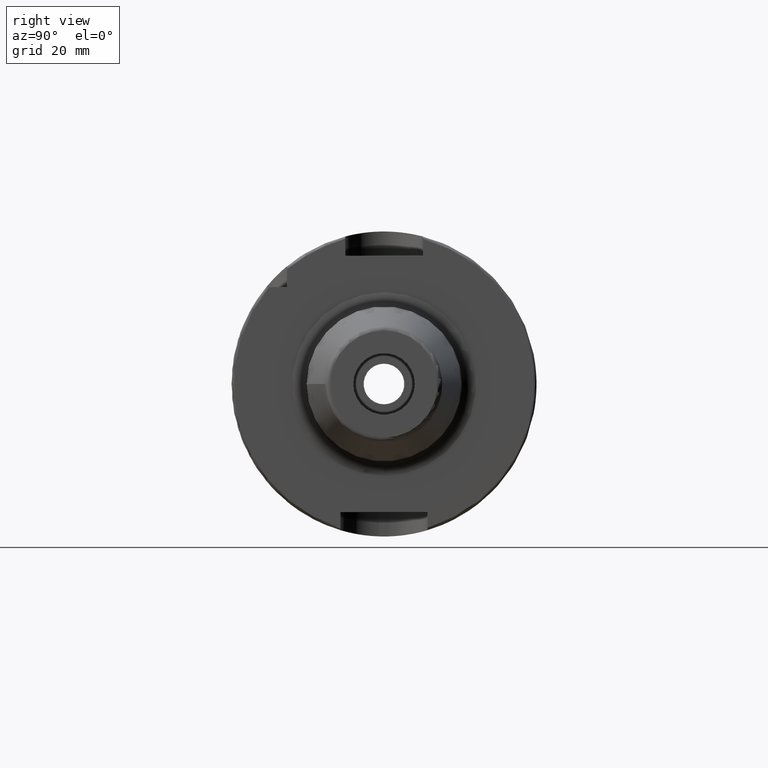
[diagram: clean part render]
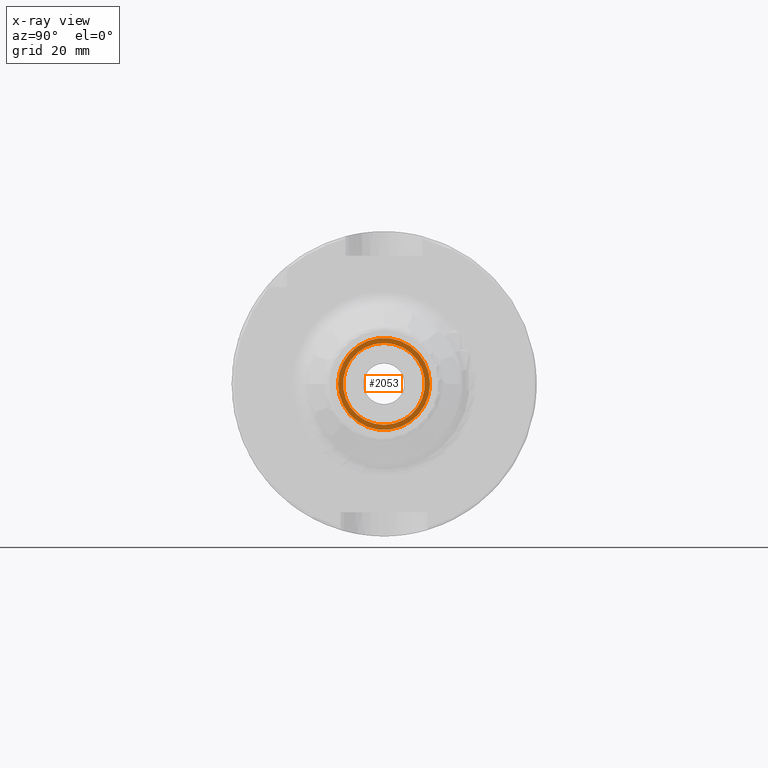
[diagram: x-ray — body ghosted, one internal face saturated and labeled with its STEP entity id]
A machine part, right view, then the same camera in x-ray: the body is ghosted and one INTERNAL B-rep face — a face not visible from any outside direction — is saturated and labeled: STEP entity #2053.
In plain terms, the highlighted planar face has unit normal (-1, 0, 0).
Its self-contained STEP definition (entity closure, byte-faithful):
#391=FACE_BOUND('',#629,.T.);
#500=FACE_OUTER_BOUND('',#628,.T.);
#628=EDGE_LOOP('',(#1850));
#629=EDGE_LOOP('',(#1851));
#747=CIRCLE('',#2301,8.458734);
#752=CIRCLE('',#2309,9.5);
#953=VERTEX_POINT('',#4340);
#957=VERTEX_POINT('',#4353);
#1253=EDGE_CURVE('',#953,#953,#747,.T.);
#1259=EDGE_CURVE('',#957,#957,#752,.T.);
#1850=ORIENTED_EDGE('',*,*,#1259,.F.);
#1851=ORIENTED_EDGE('',*,*,#1253,.T.);
#1944=PLANE('',#2310);
#2053=ADVANCED_FACE('',(#500,#391),#1944,.F.);
#2301=AXIS2_PLACEMENT_3D('',#4342,#2864,#2865);
#2309=AXIS2_PLACEMENT_3D('',#4355,#2881,#2882);
#2310=AXIS2_PLACEMENT_3D('',#4356,#2883,#2884);
#2864=DIRECTION('center_axis',(-1.,0.,0.));
#2865=DIRECTION('ref_axis',(0.,0.,1.));
#2881=DIRECTION('center_axis',(-1.,0.,0.));
#2882=DIRECTION('ref_axis',(0.,0.,1.));
#2883=DIRECTION('center_axis',(-1.,0.,0.));
#2884=DIRECTION('ref_axis',(0.,0.,1.));
#4340=CARTESIAN_POINT('',(17.,-1.03589615179389E-15,-8.458734));
#4342=CARTESIAN_POINT('Origin',(17.,0.,0.));
#4353=CARTESIAN_POINT('',(17.,-9.5,1.16341445918999E-15));
#4355=CARTESIAN_POINT('Origin',(17.,0.,0.));
#4356=CARTESIAN_POINT('Origin',(17.,7.5,0.));